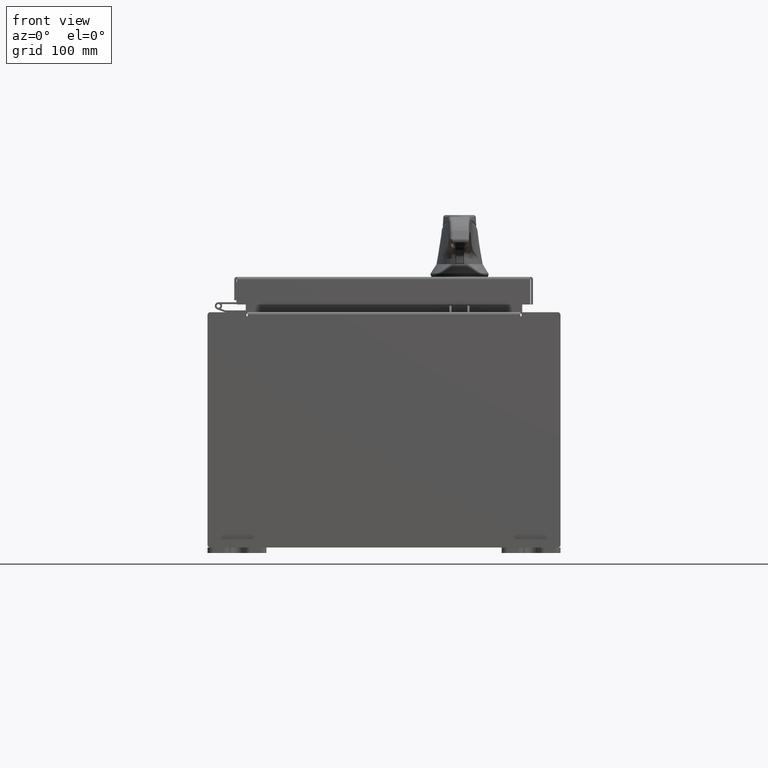
[diagram: clean part render]
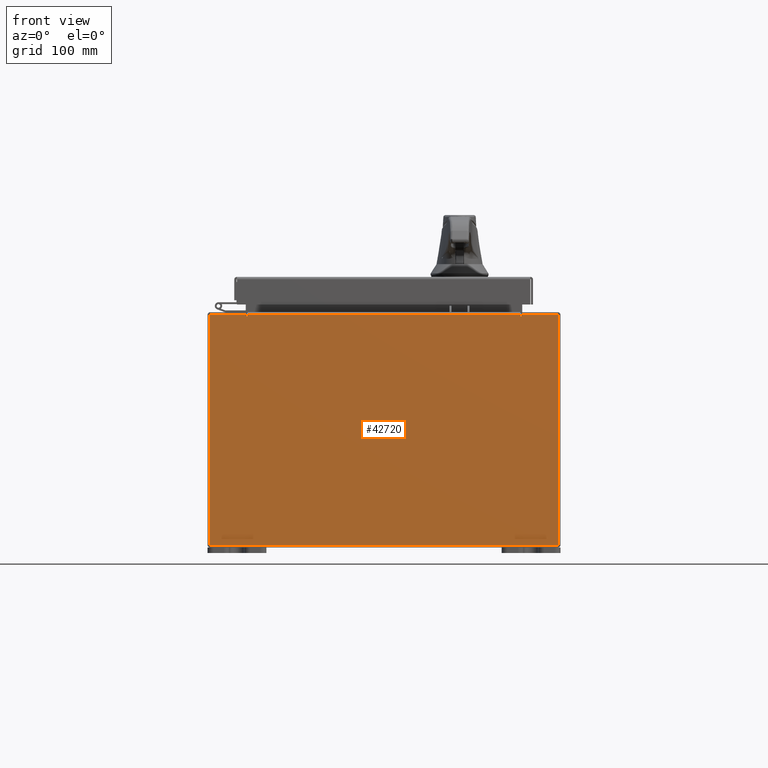
[diagram: same view with one face highlighted and labeled with its STEP entity id]
A machine part, front view. The second image highlights one B-rep face of the part: STEP entity #42720.
In plain terms, the highlighted planar face has unit normal (-0, 1, -0).
Its self-contained STEP definition (entity closure, byte-faithful):
#1999 = PLANE ( 'NONE',  #26981 ) ;
#4296 = DIRECTION ( 'NONE',  ( 1.000000000000000000, 0.0000000000000000000, 0.0000000000000000000 ) ) ;
#5228 = FACE_OUTER_BOUND ( 'NONE', #17303, .T. ) ;
#8147 = VECTOR ( 'NONE', #36519, 39.37007874015748100 ) ;
#8951 = DIRECTION ( 'NONE',  ( 0.0000000000000000000, 0.0000000000000000000, 1.000000000000000000 ) ) ;
#9319 = CARTESIAN_POINT ( 'NONE',  ( 5.925300000000002700, 0.0000000000000000000, 3.925299999999999100 ) ) ;
#9957 = ORIENTED_EDGE ( 'NONE', *, *, #74175, .T. ) ;
#10425 = DIRECTION ( 'NONE',  ( 0.0000000000000000000, -1.000000000000000000, 0.0000000000000000000 ) ) ;
#11386 = LINE ( 'NONE', #66832, #96465 ) ;
#11848 = ORIENTED_EDGE ( 'NONE', *, *, #18479, .T. ) ;
#14318 = LINE ( 'NONE', #33428, #55526 ) ;
#14406 = LINE ( 'NONE', #55153, #79962 ) ;
#14521 = VECTOR ( 'NONE', #75007, 39.37007874015748100 ) ;
#14609 = EDGE_CURVE ( 'NONE', #40771, #64914, #14318, .T. ) ;
#15566 = VERTEX_POINT ( 'NONE', #51247 ) ;
#15915 = VERTEX_POINT ( 'NONE', #68475 ) ;
#16020 = ORIENTED_EDGE ( 'NONE', *, *, #14609, .F. ) ;
#17303 = EDGE_LOOP ( 'NONE', ( #46529, #31452, #29002, #100982, #57028, #103424, #16020, #11848, #9957, #61846, #71256, #30994 ) ) ;
#18479 = EDGE_CURVE ( 'NONE', #40771, #15915, #34655, .T. ) ;
#19856 = CARTESIAN_POINT ( 'NONE',  ( -4.637199999999998200, -1.707404996040164500E-016, 3.912299999999999200 ) ) ;
#21830 = LINE ( 'NONE', #74834, #84731 ) ;
#22483 = EDGE_CURVE ( 'NONE', #64914, #96938, #59246, .T. ) ;
#23342 = AXIS2_PLACEMENT_3D ( 'NONE', #78511, #29550, #86931 ) ;
#26981 = AXIS2_PLACEMENT_3D ( 'NONE', #67451, #10425, #67808 ) ;
#27446 = CARTESIAN_POINT ( 'NONE',  ( 4.637200000000002700, 0.0000000000000000000, 3.912299999999999200 ) ) ;
#29002 = ORIENTED_EDGE ( 'NONE', *, *, #62446, .F. ) ;
#29550 = DIRECTION ( 'NONE',  ( -0.0000000000000000000, 1.000000000000000000, -0.0000000000000000000 ) ) ;
#30742 = EDGE_CURVE ( 'NONE', #104883, #106887, #73652, .T. ) ;
#30994 = ORIENTED_EDGE ( 'NONE', *, *, #36580, .T. ) ;
#31452 = ORIENTED_EDGE ( 'NONE', *, *, #105681, .F. ) ;
#32516 = AXIS2_PLACEMENT_3D ( 'NONE', #38033, #95540, #46211 ) ;
#33428 = CARTESIAN_POINT ( 'NONE',  ( 4.674549999999960900, -0.0000000000000000000, -5.072556122654668400E-014 ) ) ;
#34655 = LINE ( 'NONE', #103297, #53820 ) ;
#35023 = VERTEX_POINT ( 'NONE', #81169 ) ;
#36519 = DIRECTION ( 'NONE',  ( 1.000000000000000000, 0.0000000000000000000, 0.0000000000000000000 ) ) ;
#36580 = EDGE_CURVE ( 'NONE', #35023, #101161, #88219, .T. ) ;
#38033 = CARTESIAN_POINT ( 'NONE',  ( 4.655875000000002700, 0.0000000000000000000, 3.874949999999999200 ) ) ;
#40109 = CARTESIAN_POINT ( 'NONE',  ( -5.925299999999998200, 0.0000000000000000000, 3.925299999999999100 ) ) ;
#40551 = CARTESIAN_POINT ( 'NONE',  ( -4.637199999999998200, -0.0000000000000000000, 3.874949999999999200 ) ) ;
#40759 = VERTEX_POINT ( 'NONE', #62881 ) ;
#40771 = VERTEX_POINT ( 'NONE', #71409 ) ;
#42720 = ADVANCED_FACE ( 'NONE', ( #5228 ), #1999, .F. ) ;
#42724 = VECTOR ( 'NONE', #68080, 39.37007874015748100 ) ;
#44542 = VECTOR ( 'NONE', #64621, 39.37007874015748100 ) ;
#46211 = DIRECTION ( 'NONE',  ( 0.0000000000000000000, 0.0000000000000000000, -1.000000000000000000 ) ) ;
#46529 = ORIENTED_EDGE ( 'NONE', *, *, #86455, .F. ) ;
#49008 = VERTEX_POINT ( 'NONE', #40551 ) ;
#51247 = CARTESIAN_POINT ( 'NONE',  ( -4.674549999999998200, 0.0000000000000000000, 3.874949999999999200 ) ) ;
#51828 = CARTESIAN_POINT ( 'NONE',  ( -4.637199999999998200, -0.0000000000000000000, 0.0000000000000000000 ) ) ;
#52943 = CARTESIAN_POINT ( 'NONE',  ( 4.637200000000002700, 0.0000000000000000000, 3.874949999999999200 ) ) ;
#53820 = VECTOR ( 'NONE', #4296, 39.37007874015748100 ) ;
#55153 = CARTESIAN_POINT ( 'NONE',  ( -5.925299999999998200, 0.0000000000000000000, -3.925300000000000500 ) ) ;
#55526 = VECTOR ( 'NONE', #74775, 39.37007874015748100 ) ;
#56375 = CIRCLE ( 'NONE', #23342, 0.01867500000000003900 ) ;
#57028 = ORIENTED_EDGE ( 'NONE', *, *, #84413, .F. ) ;
#57563 = CARTESIAN_POINT ( 'NONE',  ( 5.925300000000002700, 0.0000000000000000000, -3.925300000000000500 ) ) ;
#58571 = CARTESIAN_POINT ( 'NONE',  ( 4.674550000000002600, 0.0000000000000000000, 3.874949999999999200 ) ) ;
#59246 = CIRCLE ( 'NONE', #32516, 0.01867500000000003900 ) ;
#61846 = ORIENTED_EDGE ( 'NONE', *, *, #92801, .T. ) ;
#62446 = EDGE_CURVE ( 'NONE', #104883, #49008, #86393, .T. ) ;
#62881 = CARTESIAN_POINT ( 'NONE',  ( -5.925299999999998200, 0.0000000000000000000, -3.925300000000000500 ) ) ;
#63290 = DIRECTION ( 'NONE',  ( -1.000000000000000000, -0.0000000000000000000, -0.0000000000000000000 ) ) ;
#64621 = DIRECTION ( 'NONE',  ( 1.000000000000000000, 0.0000000000000000000, 0.0000000000000000000 ) ) ;
#64914 = VERTEX_POINT ( 'NONE', #58571 ) ;
#66832 = CARTESIAN_POINT ( 'NONE',  ( 4.637200000000002700, 0.0000000000000000000, 0.0000000000000000000 ) ) ;
#67451 = CARTESIAN_POINT ( 'NONE',  ( 0.0000000000000000000, 0.0000000000000000000, 0.0000000000000000000 ) ) ;
#67808 = DIRECTION ( 'NONE',  ( 0.0000000000000000000, -0.0000000000000000000, -1.000000000000000000 ) ) ;
#68080 = DIRECTION ( 'NONE',  ( 0.0000000000000000000, 0.0000000000000000000, -1.000000000000000000 ) ) ;
#68475 = CARTESIAN_POINT ( 'NONE',  ( 5.925300000000002700, 0.0000000000000000000, 3.925299999999999100 ) ) ;
#68767 = CARTESIAN_POINT ( 'NONE',  ( -4.637199999999998200, -1.707404996040164500E-016, 3.912299999999999200 ) ) ;
#68890 = VECTOR ( 'NONE', #8951, 39.37007874015748100 ) ;
#71256 = ORIENTED_EDGE ( 'NONE', *, *, #101039, .T. ) ;
#71409 = CARTESIAN_POINT ( 'NONE',  ( 4.674550000000001800, 0.0000000000000000000, 3.925299999999999100 ) ) ;
#73652 = LINE ( 'NONE', #19856, #8147 ) ;
#74175 = EDGE_CURVE ( 'NONE', #15915, #79362, #80064, .T. ) ;
#74775 = DIRECTION ( 'NONE',  ( -1.085143195100001200E-014, 0.0000000000000000000, -1.000000000000000000 ) ) ;
#74834 = CARTESIAN_POINT ( 'NONE',  ( -5.925299999999998200, 0.0000000000000000000, 3.925299999999999100 ) ) ;
#75007 = DIRECTION ( 'NONE',  ( 0.0000000000000000000, 0.0000000000000000000, -1.000000000000000000 ) ) ;
#75167 = DIRECTION ( 'NONE',  ( -0.0000000000000000000, -0.0000000000000000000, 1.000000000000000000 ) ) ;
#78511 = CARTESIAN_POINT ( 'NONE',  ( -4.655874999999998200, 0.0000000000000000000, 3.874949999999999200 ) ) ;
#79362 = VERTEX_POINT ( 'NONE', #57563 ) ;
#79962 = VECTOR ( 'NONE', #63290, 39.37007874015748100 ) ;
#80064 = LINE ( 'NONE', #9319, #14521 ) ;
#81169 = CARTESIAN_POINT ( 'NONE',  ( -5.925299999999998200, 0.0000000000000000000, 3.925299999999999100 ) ) ;
#82034 = CARTESIAN_POINT ( 'NONE',  ( -4.674549999999998200, 0.0000000000000000000, 3.925299999999999100 ) ) ;
#82317 = CARTESIAN_POINT ( 'NONE',  ( -4.674549999999998200, -0.0000000000000000000, 0.0000000000000000000 ) ) ;
#84413 = EDGE_CURVE ( 'NONE', #96938, #106887, #11386, .T. ) ;
#84731 = VECTOR ( 'NONE', #75167, 39.37007874015748100 ) ;
#86393 = LINE ( 'NONE', #51828, #42724 ) ;
#86455 = EDGE_CURVE ( 'NONE', #15566, #101161, #93635, .T. ) ;
#86931 = DIRECTION ( 'NONE',  ( 0.0000000000000000000, 0.0000000000000000000, -1.000000000000000000 ) ) ;
#88219 = LINE ( 'NONE', #40109, #44542 ) ;
#91875 = DIRECTION ( 'NONE',  ( 0.0000000000000000000, 0.0000000000000000000, 1.000000000000000000 ) ) ;
#92801 = EDGE_CURVE ( 'NONE', #79362, #40759, #14406, .T. ) ;
#93635 = LINE ( 'NONE', #82317, #68890 ) ;
#95540 = DIRECTION ( 'NONE',  ( -0.0000000000000000000, 1.000000000000000000, -0.0000000000000000000 ) ) ;
#96465 = VECTOR ( 'NONE', #91875, 39.37007874015748100 ) ;
#96938 = VERTEX_POINT ( 'NONE', #52943 ) ;
#100982 = ORIENTED_EDGE ( 'NONE', *, *, #30742, .T. ) ;
#101039 = EDGE_CURVE ( 'NONE', #40759, #35023, #21830, .T. ) ;
#101161 = VERTEX_POINT ( 'NONE', #82034 ) ;
#103297 = CARTESIAN_POINT ( 'NONE',  ( -5.925299999999998200, 0.0000000000000000000, 3.925299999999999100 ) ) ;
#103424 = ORIENTED_EDGE ( 'NONE', *, *, #22483, .F. ) ;
#104883 = VERTEX_POINT ( 'NONE', #68767 ) ;
#105681 = EDGE_CURVE ( 'NONE', #49008, #15566, #56375, .T. ) ;
#106887 = VERTEX_POINT ( 'NONE', #27446 ) ;